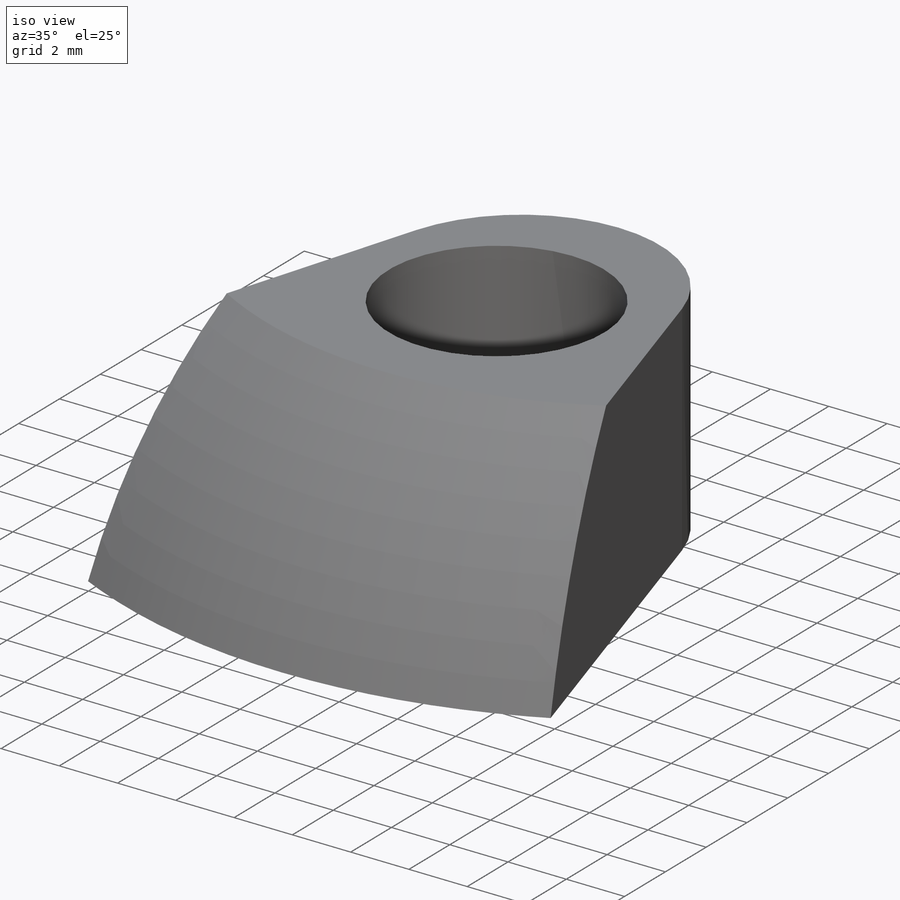
[diagram: iso view]
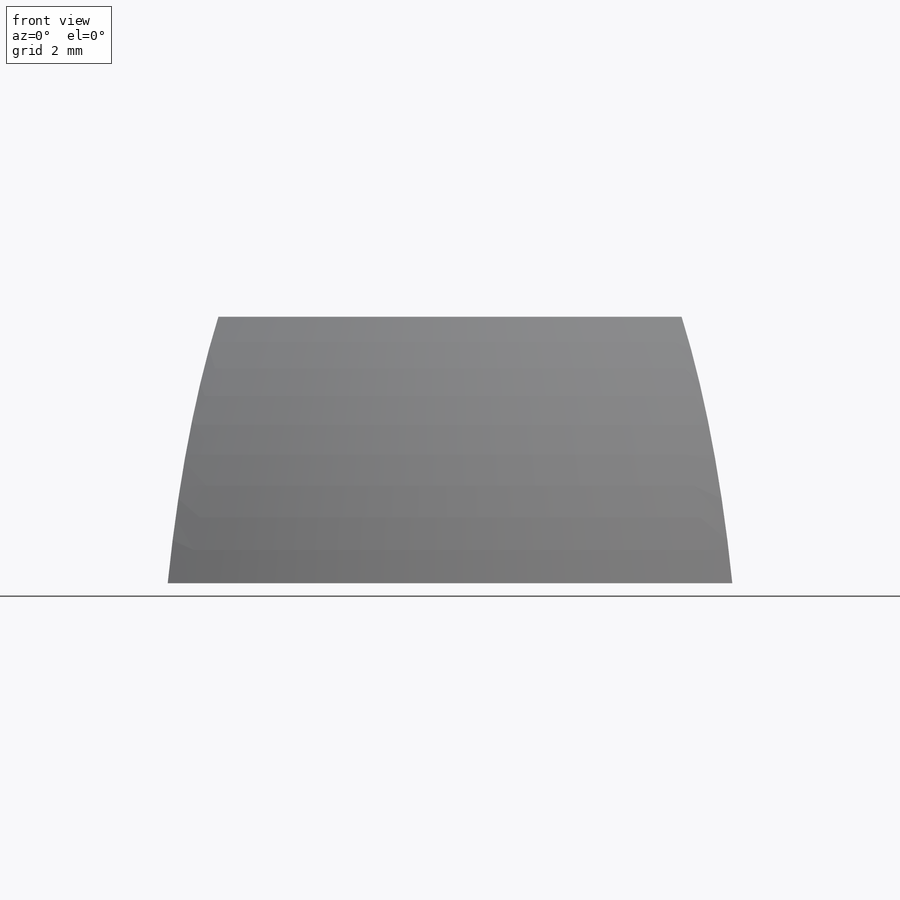
[diagram: front view]
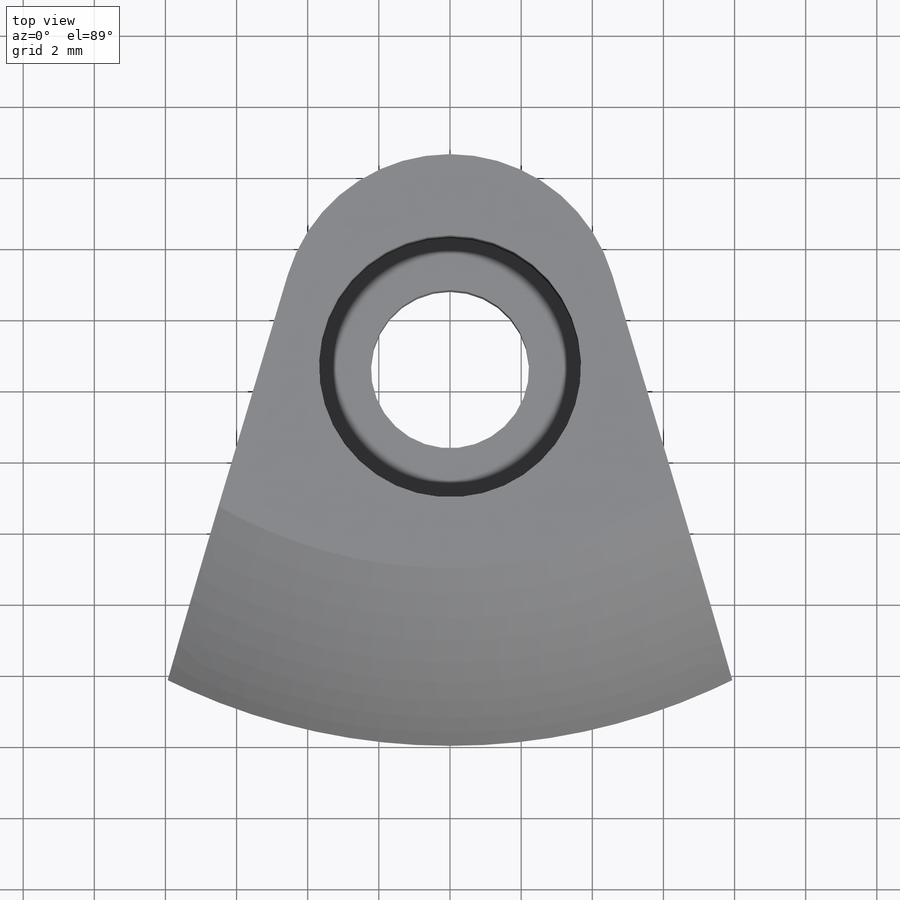
[diagram: top view]
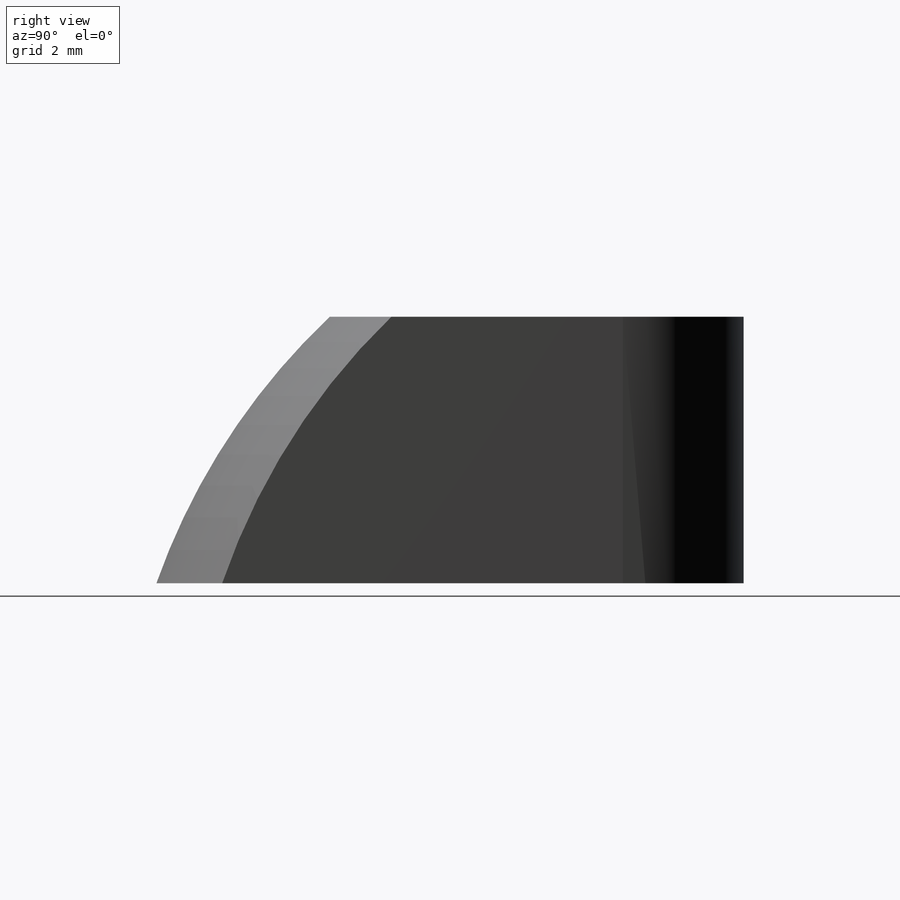
[diagram: right view]
SOLIDWORKS PART (.sldprt)
format: sldprt  version: not decoded by parser v0  size: 393,216 bytes
history: native  units: mm
features: plane x5, sketch x4, material x1, revolve x1, cut_extrude x1, cut_revolve x1 + 2 further entries (+9 scaffold rows collapsed)
feature tree (24):
  scaffold x9  (default folders/planes/origin — collapsed)
  material  "Material <not specified>"
  plane  "Plane X-Y"
  plane  "Plane X-Z"
  plane  "Plane Y-Z"
  "Axis - Y"
  "Axis - Z"
  sketch  "Sketch1"  dims[D1=38.1mm]
  revolve  "Revolve1"  Angle=360deg
  plane  "Plane1"  Offset=6.35mm
  plane  "Plane2"  Offset=7.493mm
  sketch  "Sketch2"  dims[c1.D1=~32.995568mm c1.D2=9.525mm c2.D1=16.51mm c2.D3=15.875mm]
  cut_extrude  "Cut-Extrude1"  [1 undecoded]
  sketch  "Sketch3"  dims[D1=~11.636651mm]
  sketch  "Sketch4"  dims[D1=7.366mm D2=2.286mm D3=4.445mm D4=4.445mm]
  cut_revolve  "Cut-Revolve1"  Angle=360deg
decode coverage: 6 of 7 modeling features carry decoded parameters; 2 rows unclassified (native names shown)
note: ~ marks probable driven/reference dimensions
note: 1 parameter value undecoded
note: suppression state not decoded; provenance and decode notes live in map.json
